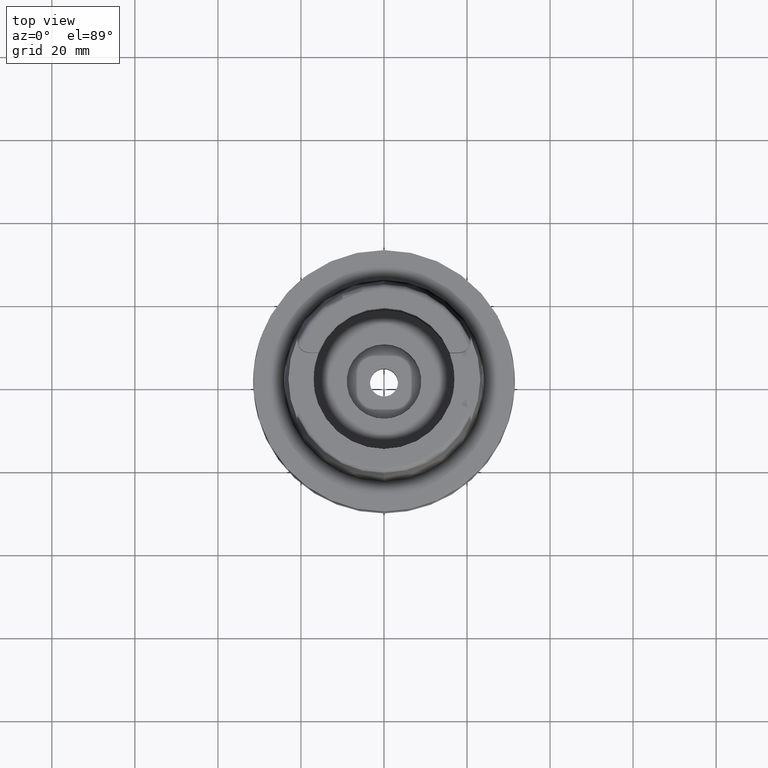
[diagram: clean part render]
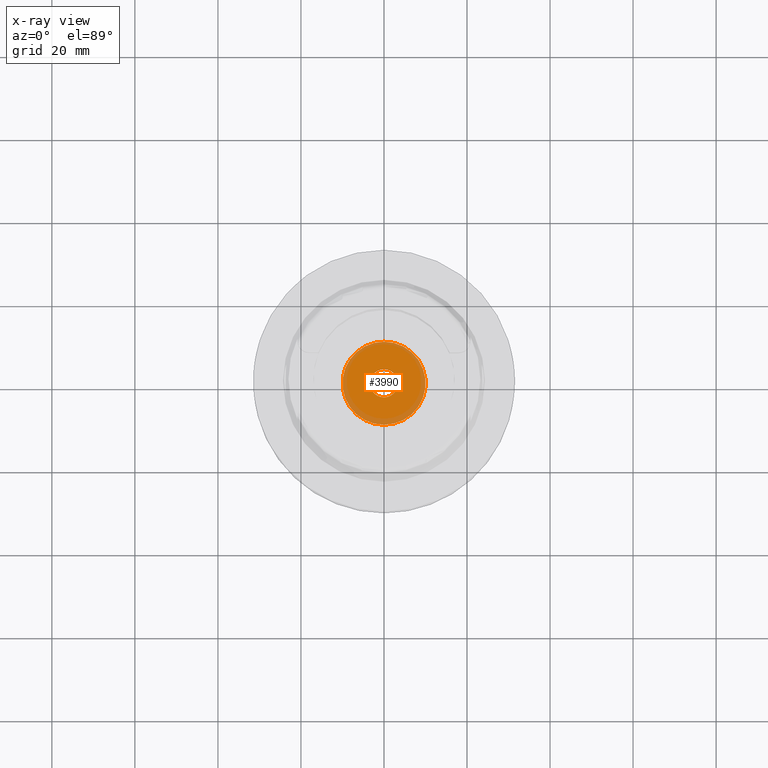
[diagram: x-ray — body ghosted, one internal face saturated and labeled with its STEP entity id]
A machine part, top view, then the same camera in x-ray: the body is ghosted and one INTERNAL B-rep face — a face not visible from any outside direction — is saturated and labeled: STEP entity #3990.
In plain terms, the highlighted planar face has unit normal (0, 0, 1).
Its self-contained STEP definition (entity closure, byte-faithful):
#1869=CARTESIAN_POINT('',(0.E0,0.E0,-3.5E1));
#1870=DIRECTION('',(0.E0,0.E0,1.E0));
#1871=DIRECTION('',(0.E0,-1.E0,0.E0));
#1872=AXIS2_PLACEMENT_3D('',#1869,#1870,#1871);
#1877=CARTESIAN_POINT('',(0.E0,0.E0,-3.5E1));
#1878=DIRECTION('',(0.E0,0.E0,1.E0));
#1879=DIRECTION('',(0.E0,1.E0,0.E0));
#1880=AXIS2_PLACEMENT_3D('',#1877,#1878,#1879);
#1885=CARTESIAN_POINT('',(0.E0,0.E0,-3.5E1));
#1886=DIRECTION('',(0.E0,0.E0,-1.E0));
#1887=DIRECTION('',(0.E0,-1.E0,0.E0));
#1888=AXIS2_PLACEMENT_3D('',#1885,#1886,#1887);
#1893=CARTESIAN_POINT('',(0.E0,0.E0,-3.5E1));
#1894=DIRECTION('',(0.E0,0.E0,-1.E0));
#1895=DIRECTION('',(0.E0,1.E0,0.E0));
#1896=AXIS2_PLACEMENT_3D('',#1893,#1894,#1895);
#2474=CARTESIAN_POINT('',(0.E0,3.375E0,-3.5E1));
#2475=VERTEX_POINT('',#2474);
#2476=CARTESIAN_POINT('',(0.E0,-3.375E0,-3.5E1));
#2477=VERTEX_POINT('',#2476);
#2478=CARTESIAN_POINT('',(0.E0,-1.E1,-3.5E1));
#2479=CARTESIAN_POINT('',(0.E0,1.E1,-3.5E1));
#2480=VERTEX_POINT('',#2478);
#2481=VERTEX_POINT('',#2479);
#3975=CARTESIAN_POINT('',(0.E0,0.E0,-3.5E1));
#3976=DIRECTION('',(0.E0,0.E0,1.E0));
#3977=DIRECTION('',(0.E0,1.E0,0.E0));
#3978=AXIS2_PLACEMENT_3D('',#3975,#3976,#3977);
#3979=PLANE('',#3978);
#3980=ORIENTED_EDGE('',*,*,#3968,.T.);
#3981=ORIENTED_EDGE('',*,*,#3957,.T.);
#3982=EDGE_LOOP('',(#3980,#3981));
#3983=FACE_OUTER_BOUND('',#3982,.F.);
#3985=ORIENTED_EDGE('',*,*,#3984,.T.);
#3987=ORIENTED_EDGE('',*,*,#3986,.T.);
#3988=EDGE_LOOP('',(#3985,#3987));
#3989=FACE_BOUND('',#3988,.F.);
#1873=CIRCLE('',#1872,1.E1);
#1881=CIRCLE('',#1880,1.E1);
#1889=CIRCLE('',#1888,3.375E0);
#1897=CIRCLE('',#1896,3.375E0);
#3957=EDGE_CURVE('',#2481,#2480,#1881,.T.);
#3968=EDGE_CURVE('',#2480,#2481,#1873,.T.);
#3984=EDGE_CURVE('',#2477,#2475,#1889,.T.);
#3986=EDGE_CURVE('',#2475,#2477,#1897,.T.);
#3990=ADVANCED_FACE('',(#3983,#3989),#3979,.F.);